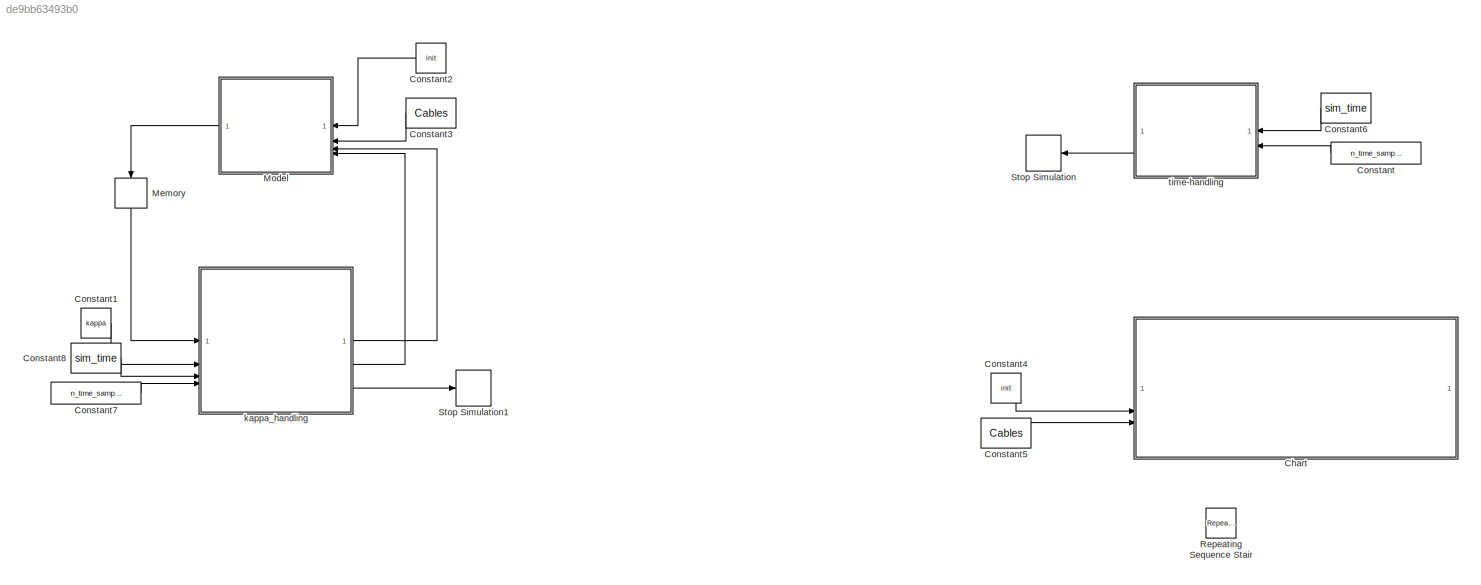
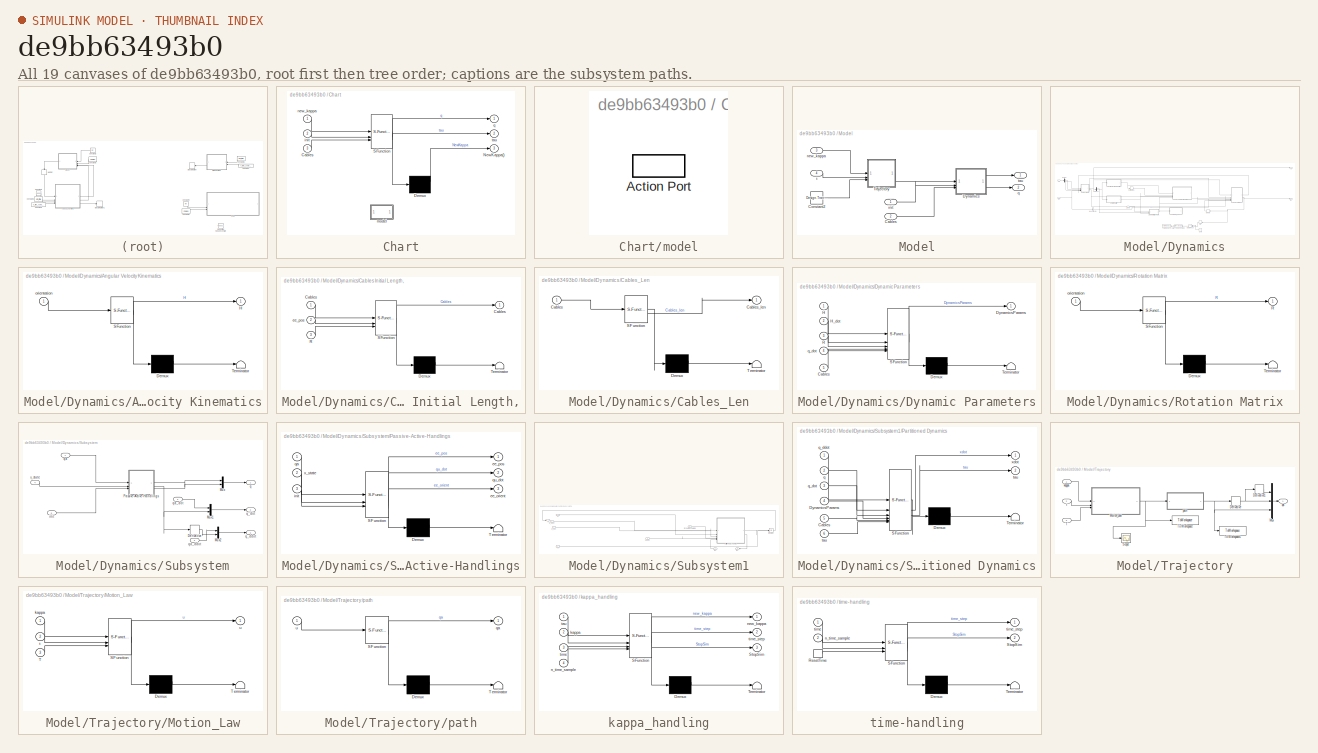
[diagram: thumbnail index - all 19 canvases of the model, root first then tree order]
MODEL slx_de9bb63493b0
KIND model
CONFIG AbsTol = auto
CONFIG EnableMultiTasking = off
CONFIG FixedStep = auto
CONFIG InitFcn = run("Ida_Dynamic.mlx")
CONFIG MaxStep = auto
CONFIG MinStep = auto
CONFIG RelTol = 1e-3
CONFIG SampleTimeConstraint = Unconstrained
CONFIG SolverName = VariableStepAuto
CONFIG StartTime = 0.0
CONFIG StopTime = inf
BLOCK [SubSystem] Chart
  Commented = on
  ErrorFcn = Stateflow.Translate.translate
  PermitHierarchicalResolution = ExplicitOnly
  PortSchema = {"entries":[{"content":{"sides":[{"content":{"connectorIds":["In1","In2","In3"]},"type":"ConnectorPlacement.EquallySpacedRectSide","uuid":"191c1550-6bd7-40a1-a407-faed922c01f5"},{"content":{"connectorIds":["Out1","Out2"],"side":"RIGHT"},"type":"ConnectorPlacement.EquallySpacedRectSide","uuid":"ea9eb825-e49b-447b-9f77-f893937989a1"},{"content":{"connectorIds":["Out3"],"side":"TOP"},"type":"Connecto...<+265ch>
  SFBlockType = Chart
  TreatAsAtomicUnit = on
BLOCK [Demux] Chart/ Demux 
  Outputs = 1
BLOCK [S-Function] Chart/ SFunction 
  EnableBusSupport = on
  FunctionName = sf_sfun
  PortCounts = [3 3]
  SFcnIsStateOwnerBlock = off
  SFunctionDeploymentMode = off
  Tag = Stateflow S-Function 10
BLOCK [Inport] Chart/Cables
  Port = 3
BLOCK [Outport] Chart/NewKappa()
  Port = 3
BLOCK [Inport] Chart/init
  Port = 2
BLOCK [SubSystem] Chart/model
  PreDeleteFcn = Stateflow.SLINSF.SimulinkMan.removePreDeleteFcn
  UndoDeleteFcn = Stateflow.SLINSF.SimulinkMan.restorePreDeleteFcn
BLOCK [ActionPort] Chart/model/Action Port
  CopyFcn = Stateflow.SLINSF.SimulinkMan.removeBlockPreDeleteFcn
  PreDeleteFcn = Stateflow.SLINSF.SimulinkMan.unsafePredeleteFcn
BLOCK [Inport] Chart/new_kappa
BLOCK [Outport] Chart/q
BLOCK [Outport] Chart/tau
  Port = 2
BLOCK [Constant] Constant
  Commented = on
  NameLocation = top
  Value = n_time_sample
BLOCK [Constant] Constant1
  Value = kappa
BLOCK [Constant] Constant2
  NameLocation = top
  OutDataTypeStr = Bus: slBus3
  Value = init
BLOCK [Constant] Constant3
  NameLocation = top
  OutDataTypeStr = Bus: slBus1
  Value = Cables
BLOCK [Constant] Constant4
  Commented = on
  OutDataTypeStr = Bus: slBus3
  Value = init
BLOCK [Constant] Constant5
  Commented = on
  OutDataTypeStr = Bus: slBus1
  Value = Cables
BLOCK [Constant] Constant6
  Commented = on
  NameLocation = top
  Value = sim_time
BLOCK [Constant] Constant7
  Value = n_time_sample
BLOCK [Constant] Constant8
  Value = sim_time
BLOCK [Memory] Memory
  NameLocation = left
BLOCK [SubSystem] Model
  NameLocation = top
BLOCK [Inport] Model/Cables
  Port = 2
BLOCK [Constant] Model/Constant2
  Value = Design.Transition_time
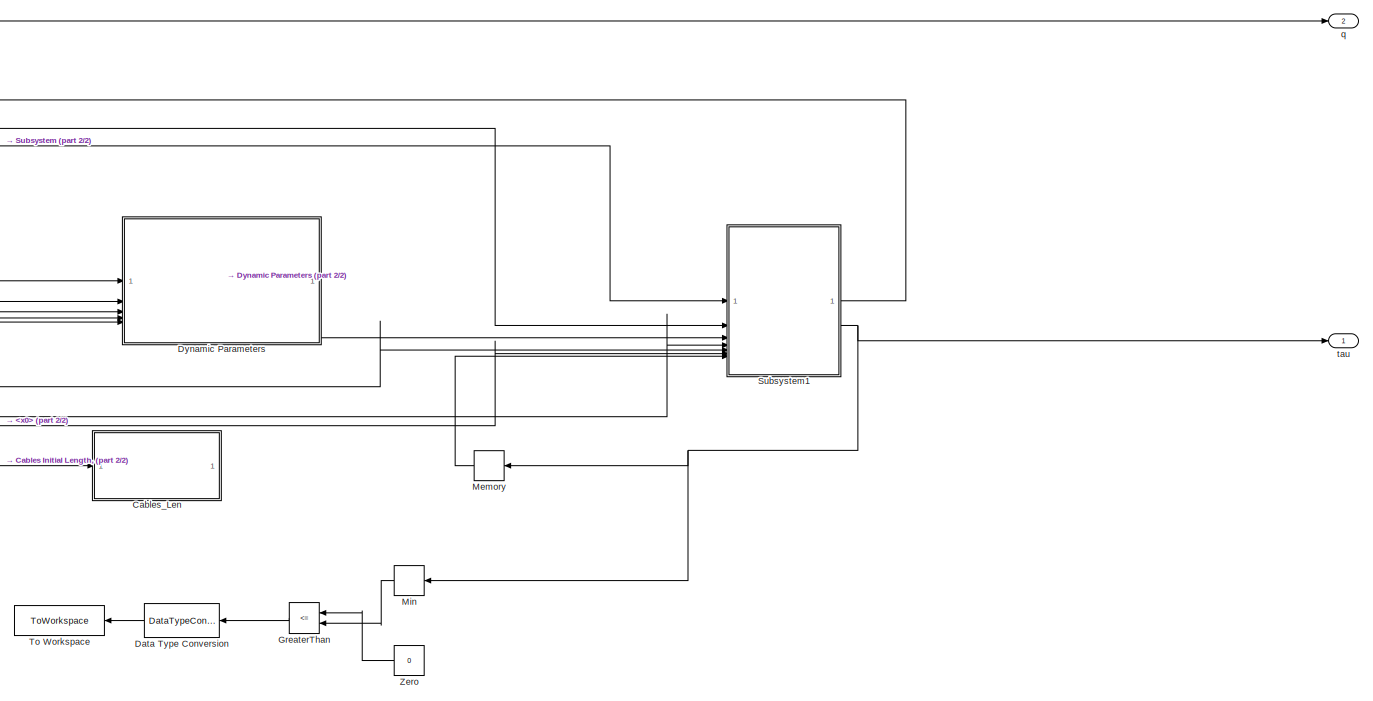
[diagram: Model/Dynamics - part 1/2, right side, full height]
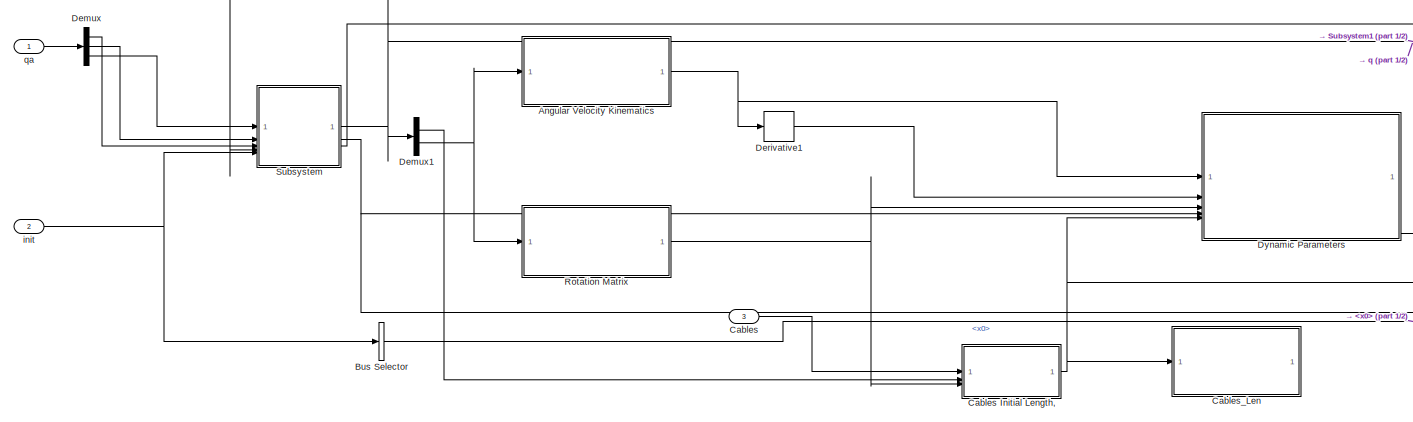
[diagram: Model/Dynamics - part 2/2, middle left region]
BLOCK [SubSystem] Model/Dynamics
BLOCK [SubSystem] Model/Dynamics/Angular Velocity Kinematics
  ErrorFcn = Stateflow.Translate.translate
  LibrarySourceBlock = simulink/User-Defined\nFunctions/MATLAB Function
  PermitHierarchicalResolution = ExplicitOnly
  SFBlockType = MATLAB Function
  TreatAsAtomicUnit = on
BLOCK [Demux] Model/Dynamics/Angular Velocity Kinematics/ Demux 
  Outputs = 1
BLOCK [S-Function] Model/Dynamics/Angular Velocity Kinematics/ SFunction 
  EnableBusSupport = on
  FunctionName = sf_sfun
  PortCounts = [1 2]
  SFcnIsStateOwnerBlock = off
  SFunctionDeploymentMode = off
  Tag = Stateflow S-Function 6
BLOCK [Terminator] Model/Dynamics/Angular Velocity Kinematics/ Terminator 
BLOCK [Outport] Model/Dynamics/Angular Velocity Kinematics/H
BLOCK [Inport] Model/Dynamics/Angular Velocity Kinematics/orientation
BLOCK [BusSelector] Model/Dynamics/Bus Selector
  OutputSignals = x0
BLOCK [Inport] Model/Dynamics/Cables
  OutDataTypeStr = Bus: slBus1
  Port = 3
BLOCK [SubSystem] Model/Dynamics/Cables Initial Length,
  ErrorFcn = Stateflow.Translate.translate
  LibrarySourceBlock = simulink/User-Defined\nFunctions/MATLAB Function
  PermitHierarchicalResolution = ExplicitOnly
  SFBlockType = MATLAB Function
  TreatAsAtomicUnit = on
BLOCK [Demux] Model/Dynamics/Cables Initial Length,/ Demux 
  Outputs = 1
BLOCK [S-Function] Model/Dynamics/Cables Initial Length,/ SFunction 
  EnableBusSupport = on
  FunctionName = sf_sfun
  Parameters = Design
  PortCounts = [3 2]
  SFcnIsStateOwnerBlock = off
  SFunctionDeploymentMode = off
  Tag = Stateflow S-Function 7
BLOCK [Terminator] Model/Dynamics/Cables Initial Length,/ Terminator 
BLOCK [Outport] Model/Dynamics/Cables Initial Length,/Cables
BLOCK [Inport] Model/Dynamics/Cables Initial Length,/Cables 
BLOCK [Inport] Model/Dynamics/Cables Initial Length,/R
  Port = 3
BLOCK [Inport] Model/Dynamics/Cables Initial Length,/ee_pos
  Port = 2
BLOCK [SubSystem] Model/Dynamics/Cables_Len
  ErrorFcn = Stateflow.Translate.translate
  LibrarySourceBlock = simulink/User-Defined\nFunctions/MATLAB Function
  PermitHierarchicalResolution = ExplicitOnly
  SFBlockType = MATLAB Function
  TreatAsAtomicUnit = on
BLOCK [Demux] Model/Dynamics/Cables_Len/ Demux 
  Outputs = 1
BLOCK [S-Function] Model/Dynamics/Cables_Len/ SFunction 
  EnableBusSupport = on
  FunctionName = sf_sfun
  PortCounts = [1 2]
  SFcnIsStateOwnerBlock = off
  SFunctionDeploymentMode = off
  Tag = Stateflow S-Function 9
BLOCK [Terminator] Model/Dynamics/Cables_Len/ Terminator 
BLOCK [Inport] Model/Dynamics/Cables_Len/Cables
BLOCK [Outport] Model/Dynamics/Cables_Len/Cables_len
BLOCK [DataTypeConversion] Model/Dynamics/Data Type Conversion
  NameLocation = top
  OutDataTypeStr = double
  RndMeth = Floor
  SaturateOnIntegerOverflow = off
BLOCK [Demux] Model/Dynamics/Demux
  Outputs = 3
BLOCK [Demux] Model/Dynamics/Demux1
  Outputs = 2
BLOCK [Derivative] Model/Dynamics/Derivative1
BLOCK [SubSystem] Model/Dynamics/Dynamic Parameters
  ErrorFcn = Stateflow.Translate.translate
  LibrarySourceBlock = simulink/User-Defined\nFunctions/MATLAB Function
  PermitHierarchicalResolution = ExplicitOnly
  SFBlockType = MATLAB Function
  TreatAsAtomicUnit = on
BLOCK [Demux] Model/Dynamics/Dynamic Parameters/ Demux 
  Outputs = 1
BLOCK [S-Function] Model/Dynamics/Dynamic Parameters/ SFunction 
  EnableBusSupport = on
  FunctionName = sf_sfun
  Parameters = Design
  PortCounts = [5 2]
  SFcnIsStateOwnerBlock = off
  SFunctionDeploymentMode = off
  Tag = Stateflow S-Function 4
BLOCK [Terminator] Model/Dynamics/Dynamic Parameters/ Terminator 
BLOCK [Inport] Model/Dynamics/Dynamic Parameters/Cables
  Port = 5
BLOCK [Outport] Model/Dynamics/Dynamic Parameters/DynamicsParams
BLOCK [Inport] Model/Dynamics/Dynamic Parameters/H
BLOCK [Inport] Model/Dynamics/Dynamic Parameters/H_dot
  Port = 2
BLOCK [Inport] Model/Dynamics/Dynamic Parameters/R
  Port = 3
BLOCK [Inport] Model/Dynamics/Dynamic Parameters/q_dot
  Port = 4
BLOCK [RelationalOperator] Model/Dynamics/GreaterThan
  InputSameDT = off
  NameLocation = top
  Operator = <=
  OutDataTypeStr = boolean
  RndMeth = Simplest
BLOCK [Memory] Model/Dynamics/Memory
BLOCK [MinMax] Model/Dynamics/Min
  NameLocation = top
BLOCK [SubSystem] Model/Dynamics/Rotation Matrix
  ErrorFcn = Stateflow.Translate.translate
  LibrarySourceBlock = simulink/User-Defined\nFunctions/MATLAB Function
  PermitHierarchicalResolution = ExplicitOnly
  SFBlockType = MATLAB Function
  TreatAsAtomicUnit = on
BLOCK [Demux] Model/Dynamics/Rotation Matrix/ Demux 
  Outputs = 1
BLOCK [S-Function] Model/Dynamics/Rotation Matrix/ SFunction 
  EnableBusSupport = on
  FunctionName = sf_sfun
  PortCounts = [1 2]
  SFcnIsStateOwnerBlock = off
  SFunctionDeploymentMode = off
  Tag = Stateflow S-Function 5
BLOCK [Terminator] Model/Dynamics/Rotation Matrix/ Terminator 
BLOCK [Outport] Model/Dynamics/Rotation Matrix/R
BLOCK [Inport] Model/Dynamics/Rotation Matrix/orientation
BLOCK [SubSystem] Model/Dynamics/Subsystem
BLOCK [Derivative] Model/Dynamics/Subsystem/Derivative
BLOCK [Mux] Model/Dynamics/Subsystem/Mux
  DisplayOption = bar
  Inputs = 2
BLOCK [Mux] Model/Dynamics/Subsystem/Mux1
  DisplayOption = bar
  Inputs = 2
BLOCK [Mux] Model/Dynamics/Subsystem/Mux2
  DisplayOption = bar
  Inputs = 2
BLOCK [SubSystem] Model/Dynamics/Subsystem/Passive-Active-Handlings
  ErrorFcn = Stateflow.Translate.translate
  PermitHierarchicalResolution = ExplicitOnly
  SFBlockType = Chart
  TreatAsAtomicUnit = on
BLOCK [Demux] Model/Dynamics/Subsystem/Passive-Active-Handlings/ Demux 
  Outputs = 1
BLOCK [S-Function] Model/Dynamics/Subsystem/Passive-Active-Handlings/ SFunction 
  EnableBusSupport = on
  FunctionName = sf_sfun
  Parameters = Design,Path
  PortCounts = [3 4]
  SFcnIsStateOwnerBlock = off
  SFunctionDeploymentMode = off
  Tag = Stateflow S-Function 8
BLOCK [Terminator] Model/Dynamics/Subsystem/Passive-Active-Handlings/ Terminator 
BLOCK [Outport] Model/Dynamics/Subsystem/Passive-Active-Handlings/ee_orient
  Port = 3
BLOCK [Outport] Model/Dynamics/Subsystem/Passive-Active-Handlings/ee_pos
BLOCK [Inport] Model/Dynamics/Subsystem/Passive-Active-Handlings/init
  Port = 3
BLOCK [Inport] Model/Dynamics/Subsystem/Passive-Active-Handlings/qa
BLOCK [Outport] Model/Dynamics/Subsystem/Passive-Active-Handlings/qu_dot
  Port = 2
BLOCK [Inport] Model/Dynamics/Subsystem/Passive-Active-Handlings/x_state
  Port = 2
BLOCK [Inport] Model/Dynamics/Subsystem/init
  Port = 5
BLOCK [Outport] Model/Dynamics/Subsystem/q
BLOCK [Outport] Model/Dynamics/Subsystem/q_ddot
  Port = 3
BLOCK [Outport] Model/Dynamics/Subsystem/q_dot
  Port = 2
BLOCK [Inport] Model/Dynamics/Subsystem/qa
BLOCK [Inport] Model/Dynamics/Subsystem/qa_ddot
  Port = 3
BLOCK [Inport] Model/Dynamics/Subsystem/qa_dot
  Port = 2
BLOCK [Inport] Model/Dynamics/Subsystem/x_state
  Port = 4
BLOCK [SubSystem] Model/Dynamics/Subsystem1
BLOCK [Inport] Model/Dynamics/Subsystem1/<x0>
  Port = 6
BLOCK [Inport] Model/Dynamics/Subsystem1/Cables
  Port = 5
BLOCK [Inport] Model/Dynamics/Subsystem1/DynamicsParams
  Port = 3
BLOCK [Integrator] Model/Dynamics/Subsystem1/Integrator
  InitialCondition = init.x0
  InitialConditionSource = external
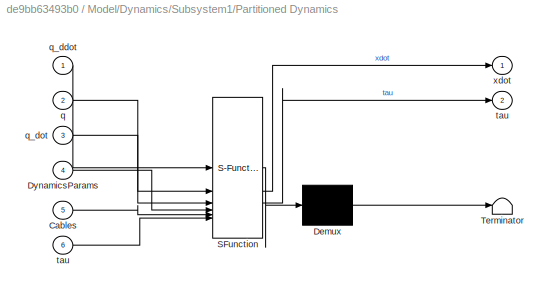
BLOCK [SubSystem] Model/Dynamics/Subsystem1/Partitioned Dynamics
  ErrorFcn = Stateflow.Translate.translate
  LibrarySourceBlock = simulink/User-Defined\nFunctions/MATLAB Function
  PermitHierarchicalResolution = ExplicitOnly
  SFBlockType = MATLAB Function
  TreatAsAtomicUnit = on
BLOCK [Demux] Model/Dynamics/Subsystem1/Partitioned Dynamics/ Demux 
  Outputs = 1
BLOCK [S-Function] Model/Dynamics/Subsystem1/Partitioned Dynamics/ SFunction 
  EnableBusSupport = on
  FunctionName = sf_sfun
  Parameters = Design
  PortCounts = [6 3]
  SFcnIsStateOwnerBlock = off
  SFunctionDeploymentMode = off
  Tag = Stateflow S-Function 3
BLOCK [Terminator] Model/Dynamics/Subsystem1/Partitioned Dynamics/ Terminator 
BLOCK [Inport] Model/Dynamics/Subsystem1/Partitioned Dynamics/Cables
  Port = 5
BLOCK [Inport] Model/Dynamics/Subsystem1/Partitioned Dynamics/DynamicsParams
  Port = 4
BLOCK [Inport] Model/Dynamics/Subsystem1/Partitioned Dynamics/q
  Port = 2
BLOCK [Inport] Model/Dynamics/Subsystem1/Partitioned Dynamics/q_ddot
BLOCK [Inport] Model/Dynamics/Subsystem1/Partitioned Dynamics/q_dot
  Port = 3
BLOCK [Outport] Model/Dynamics/Subsystem1/Partitioned Dynamics/tau
  Port = 2
BLOCK [Inport] Model/Dynamics/Subsystem1/Partitioned Dynamics/tau 
  Port = 6
BLOCK [Outport] Model/Dynamics/Subsystem1/Partitioned Dynamics/xdot
BLOCK [Inport] Model/Dynamics/Subsystem1/q
BLOCK [Inport] Model/Dynamics/Subsystem1/q_ddot
  Port = 2
BLOCK [Inport] Model/Dynamics/Subsystem1/q_dot
  Port = 4
BLOCK [Outport] Model/Dynamics/Subsystem1/tau
  Port = 2
BLOCK [Inport] Model/Dynamics/Subsystem1/tau 
  Port = 7
BLOCK [Outport] Model/Dynamics/Subsystem1/x
BLOCK [ToWorkspace] Model/Dynamics/To Workspace
  FixptAsFi = on
  MaxDataPoints = inf
  NameLocation = top
  SampleTime = -1
  SaveFormat = Timeseries
  VariableName = IsTensionPositive
BLOCK [Constant] Model/Dynamics/Zero
  NameLocation = top
  OutDataTypeStr = Inherit: Inherit via back propagation
  Value = 0
BLOCK [Inport] Model/Dynamics/init
  OutDataTypeStr = Bus: slBus3
  Port = 2
BLOCK [Outport] Model/Dynamics/q
  Port = 2
BLOCK [Inport] Model/Dynamics/qa
BLOCK [Outport] Model/Dynamics/tau
BLOCK [SubSystem] Model/Trajectory
BLOCK [Derivative] Model/Trajectory/Derivative
BLOCK [Derivative] Model/Trajectory/Derivative1
BLOCK [SubSystem] Model/Trajectory/Motion_Law
  ErrorFcn = Stateflow.Translate.translate
  LibrarySourceBlock = simulink/User-Defined\nFunctions/MATLAB Function
  PermitHierarchicalResolution = ExplicitOnly
  SFBlockType = MATLAB Function
  TreatAsAtomicUnit = on
BLOCK [Demux] Model/Trajectory/Motion_Law/ Demux 
  Outputs = 1
BLOCK [S-Function] Model/Trajectory/Motion_Law/ SFunction 
  EnableBusSupport = on
  FunctionName = sf_sfun
  Parameters = r
  PortCounts = [3 2]
  SFcnIsStateOwnerBlock = off
  SFunctionDeploymentMode = off
  Tag = Stateflow S-Function 2
BLOCK [Terminator] Model/Trajectory/Motion_Law/ Terminator 
BLOCK [Inport] Model/Trajectory/Motion_Law/T
  Port = 3
BLOCK [Inport] Model/Trajectory/Motion_Law/kappa
BLOCK [Inport] Model/Trajectory/Motion_Law/t
  Port = 2
BLOCK [Outport] Model/Trajectory/Motion_Law/u
BLOCK [Mux] Model/Trajectory/Mux
  DisplayOption = bar
  Inputs = 3
BLOCK [Scope] Model/Trajectory/Scope
  Floating = off
  NumInputPorts = 1
  ScopeSpecificationString = Simulink.scopes.TimeScopeBlockCfg('CurrentConfiguration', extmgr.ConfigurationSet(extmgr.Configuration('Core','General UI',true),extmgr.Configuration('Core','Source UI',true),extmgr.Configuration('Sources','WiredSimulink',true),extmgr.Configuration('Visuals','Time Domain',true,'SerializedDisplays',{struct('MinYLimReal','-5913892031518088672909082807500800.00000','MaxYLimReal','53225028283662811891...<+1913ch>
BLOCK [Inport] Model/Trajectory/T
  Port = 3
BLOCK [ToWorkspace] Model/Trajectory/To Workspace
  FixptAsFi = on
  MaxDataPoints = inf
  SampleTime = -1
  SaveFormat = Timeseries
  VariableName = MotionLaw
BLOCK [ToWorkspace] Model/Trajectory/To Workspace1
  FixptAsFi = on
  MaxDataPoints = inf
  SampleTime = -1
  SaveFormat = Timeseries
  VariableName = qa
BLOCK [Inport] Model/Trajectory/kappa
BLOCK [SubSystem] Model/Trajectory/path
  ErrorFcn = Stateflow.Translate.translate
  LibrarySourceBlock = simulink/User-Defined\nFunctions/MATLAB Function
  PermitHierarchicalResolution = ExplicitOnly
  SFBlockType = MATLAB Function
  TreatAsAtomicUnit = on
BLOCK [Demux] Model/Trajectory/path/ Demux 
  Outputs = 1
BLOCK [S-Function] Model/Trajectory/path/ SFunction 
  EnableBusSupport = on
  FunctionName = sf_sfun
  Parameters = Path
  PortCounts = [1 2]
  SFcnIsStateOwnerBlock = off
  SFunctionDeploymentMode = off
  Tag = Stateflow S-Function 1
BLOCK [Terminator] Model/Trajectory/path/ Terminator 
BLOCK [Outport] Model/Trajectory/path/qa
BLOCK [Inport] Model/Trajectory/path/u
BLOCK [Outport] Model/Trajectory/qa
BLOCK [Inport] Model/Trajectory/t
  Port = 2
BLOCK [Inport] Model/init
BLOCK [Inport] Model/new_kappa
  Port = 3
BLOCK [Outport] Model/q
  Port = 2
BLOCK [Inport] Model/t
  Port = 4
BLOCK [Outport] Model/tau
BLOCK [Reference] Repeating Sequence Stair  REF=simulink/Sources/Repeating
Sequence
Stair
  SourceBlock = simulink/Sources/Repeating\nSequence\nStair
  SourceType = Repeating Sequence Stair
BLOCK [Stop] Stop Simulation
  Commented = on
  NameLocation = top
BLOCK [Stop] Stop Simulation1
BLOCK [SubSystem] kappa_handling
  ErrorFcn = Stateflow.Translate.translate
  PermitHierarchicalResolution = ExplicitOnly
  SFBlockType = Chart
  TreatAsAtomicUnit = on
BLOCK [Demux] kappa_handling/ Demux 
  Outputs = 1
BLOCK [S-Function] kappa_handling/ SFunction 
  EnableBusSupport = on
  FunctionName = sf_sfun
  PortCounts = [4 4]
  SFcnIsStateOwnerBlock = off
  SFunctionDeploymentMode = off
  Tag = Stateflow S-Function 11
BLOCK [Terminator] kappa_handling/ Terminator 
BLOCK [Outport] kappa_handling/StopSim
  Port = 3
BLOCK [Inport] kappa_handling/kappa
  Port = 2
BLOCK [Inport] kappa_handling/n_time_sample
  Port = 4
BLOCK [Outport] kappa_handling/new_kappa
BLOCK [Inport] kappa_handling/tau
BLOCK [Inport] kappa_handling/time
  Port = 3
BLOCK [Outport] kappa_handling/time_step
  Port = 2
BLOCK [SubSystem] time-handling
  Commented = on
  ErrorFcn = Stateflow.Translate.translate
  NameLocation = top
  PermitHierarchicalResolution = ExplicitOnly
  SFBlockType = Chart
  TreatAsAtomicUnit = on
BLOCK [Demux] time-handling/ Demux 
  Outputs = 1
BLOCK [S-Function] time-handling/ SFunction 
  EnableBusSupport = on
  FunctionName = sf_sfun
  PortCounts = [3 3]
  SFcnIsStateOwnerBlock = off
  SFunctionDeploymentMode = off
  Tag = Stateflow S-Function 12
BLOCK [Terminator] time-handling/ Terminator 
BLOCK [TriggerPort] time-handling/ResetTime
  ShowOutputPort = on
  StatesWhenEnabling = reset
  TriggerType = function-call
  VariantControl = (inherit)
BLOCK [Outport] time-handling/StopSim
  Port = 2
BLOCK [Inport] time-handling/n_time_sample
  Port = 2
BLOCK [Inport] time-handling/time
BLOCK [Outport] time-handling/time_step
LINE Constant1:1 -> kappa_handling:2
LINE Constant2:1 -> Model:1
LINE Constant3:1 -> Model:2
LINE Constant4:1 -> Chart:2
LINE Constant5:1 -> Chart:3
LINE Constant6:1 -> time-handling:1
LINE Constant7:1 -> kappa_handling:4
LINE Constant8:1 -> kappa_handling:3
LINE Constant:1 -> time-handling:2
LINE Memory:1 -> kappa_handling:1
LINE Model/Cables:1 -> Model/Dynamics:3
LINE Model/Constant2:1 -> Model/Trajectory:3
NET Model/Dynamics/Angular Velocity Kinematics:1 -> Model/Dynamics/Derivative1:1, Model/Dynamics/Dynamic Parameters:1
LINE Model/Dynamics/Bus Selector:1 -> Model/Dynamics/Subsystem1:6
NET Model/Dynamics/Cables Initial Length,:1 -> Model/Dynamics/Cables_Len:1, Model/Dynamics/Dynamic Parameters:5, Model/Dynamics/Subsystem1:5
LINE Model/Dynamics/Cables:1 -> Model/Dynamics/Cables Initial Length,:1
LINE Model/Dynamics/Data Type Conversion:1 -> Model/Dynamics/To Workspace:1
LINE Model/Dynamics/Demux1:1 -> Model/Dynamics/Cables Initial Length,:2
NET Model/Dynamics/Demux1:2 -> Model/Dynamics/Angular Velocity Kinematics:1, Model/Dynamics/Rotation Matrix:1
LINE Model/Dynamics/Demux:1 -> Model/Dynamics/Subsystem:3
LINE Model/Dynamics/Demux:2 -> Model/Dynamics/Subsystem:2
LINE Model/Dynamics/Demux:3 -> Model/Dynamics/Subsystem:1
LINE Model/Dynamics/Derivative1:1 -> Model/Dynamics/Dynamic Parameters:2
LINE Model/Dynamics/Dynamic Parameters:1 -> Model/Dynamics/Subsystem1:3
LINE Model/Dynamics/GreaterThan:1 -> Model/Dynamics/Data Type Conversion:1
LINE Model/Dynamics/Memory:1 -> Model/Dynamics/Subsystem1:7
LINE Model/Dynamics/Min:1 -> Model/Dynamics/GreaterThan:2
NET Model/Dynamics/Rotation Matrix:1 -> Model/Dynamics/Cables Initial Length,:3, Model/Dynamics/Dynamic Parameters:3
LINE Model/Dynamics/Subsystem/Derivative:1 -> Model/Dynamics/Subsystem/Mux2:2
LINE Model/Dynamics/Subsystem/Mux1:1 -> Model/Dynamics/Subsystem/q_dot:1
LINE Model/Dynamics/Subsystem/Mux2:1 -> Model/Dynamics/Subsystem/q_ddot:1
LINE Model/Dynamics/Subsystem/Mux:1 -> Model/Dynamics/Subsystem/q:1
LINE Model/Dynamics/Subsystem/Passive-Active-Handlings:1 -> Model/Dynamics/Subsystem/Mux:1
NET Model/Dynamics/Subsystem/Passive-Active-Handlings:2 -> Model/Dynamics/Subsystem/Derivative:1, Model/Dynamics/Subsystem/Mux1:2
LINE Model/Dynamics/Subsystem/Passive-Active-Handlings:3 -> Model/Dynamics/Subsystem/Mux:2
LINE Model/Dynamics/Subsystem/init:1 -> Model/Dynamics/Subsystem/Passive-Active-Handlings:3
LINE Model/Dynamics/Subsystem/qa:1 -> Model/Dynamics/Subsystem/Passive-Active-Handlings:1
LINE Model/Dynamics/Subsystem/qa_ddot:1 -> Model/Dynamics/Subsystem/Mux2:1
LINE Model/Dynamics/Subsystem/qa_dot:1 -> Model/Dynamics/Subsystem/Mux1:1
LINE Model/Dynamics/Subsystem/x_state:1 -> Model/Dynamics/Subsystem/Passive-Active-Handlings:2
LINE Model/Dynamics/Subsystem1/<x0>:1 -> Model/Dynamics/Subsystem1/Integrator:2
LINE Model/Dynamics/Subsystem1/Cables:1 -> Model/Dynamics/Subsystem1/Partitioned Dynamics:5
LINE Model/Dynamics/Subsystem1/DynamicsParams:1 -> Model/Dynamics/Subsystem1/Partitioned Dynamics:4
LINE Model/Dynamics/Subsystem1/Integrator:1 -> Model/Dynamics/Subsystem1/x:1
LINE Model/Dynamics/Subsystem1/Partitioned Dynamics:1 -> Model/Dynamics/Subsystem1/Integrator:1
LINE Model/Dynamics/Subsystem1/Partitioned Dynamics:2 -> Model/Dynamics/Subsystem1/tau:1
LINE Model/Dynamics/Subsystem1/q:1 -> Model/Dynamics/Subsystem1/Partitioned Dynamics:2
LINE Model/Dynamics/Subsystem1/q_ddot:1 -> Model/Dynamics/Subsystem1/Partitioned Dynamics:1
LINE Model/Dynamics/Subsystem1/q_dot:1 -> Model/Dynamics/Subsystem1/Partitioned Dynamics:3
LINE Model/Dynamics/Subsystem1/tau :1 -> Model/Dynamics/Subsystem1/Partitioned Dynamics:6
LINE Model/Dynamics/Subsystem1:1 -> Model/Dynamics/Subsystem:4
NET Model/Dynamics/Subsystem1:2 -> Model/Dynamics/Memory:1, Model/Dynamics/Min:1, Model/Dynamics/tau:1
NET Model/Dynamics/Subsystem:1 -> Model/Dynamics/Demux1:1, Model/Dynamics/Subsystem1:1, Model/Dynamics/q:1
NET Model/Dynamics/Subsystem:2 -> Model/Dynamics/Dynamic Parameters:4, Model/Dynamics/Subsystem1:4
LINE Model/Dynamics/Subsystem:3 -> Model/Dynamics/Subsystem1:2
LINE Model/Dynamics/Zero:1 -> Model/Dynamics/GreaterThan:1
NET Model/Dynamics/init:1 -> Model/Dynamics/Bus Selector:1, Model/Dynamics/Subsystem:5
LINE Model/Dynamics/qa:1 -> Model/Dynamics/Demux:1
LINE Model/Dynamics:1 -> Model/tau:1
LINE Model/Dynamics:2 -> Model/q:1
LINE Model/Trajectory/Derivative1:1 -> Model/Trajectory/Mux:1
NET Model/Trajectory/Derivative:1 -> Model/Trajectory/Derivative1:1, Model/Trajectory/Mux:2
NET Model/Trajectory/Motion_Law:1 -> Model/Trajectory/Scope:1, Model/Trajectory/To Workspace:1, Model/Trajectory/path:1
LINE Model/Trajectory/Mux:1 -> Model/Trajectory/qa:1
LINE Model/Trajectory/T:1 -> Model/Trajectory/Motion_Law:3
LINE Model/Trajectory/kappa:1 -> Model/Trajectory/Motion_Law:1
NET Model/Trajectory/path:1 -> Model/Trajectory/Derivative:1, Model/Trajectory/Mux:3, Model/Trajectory/To Workspace1:1
LINE Model/Trajectory/t:1 -> Model/Trajectory/Motion_Law:2
LINE Model/Trajectory:1 -> Model/Dynamics:1
LINE Model/init:1 -> Model/Dynamics:2
LINE Model/new_kappa:1 -> Model/Trajectory:1
LINE Model/t:1 -> Model/Trajectory:2
LINE Model:1 -> Memory:1
LINE kappa_handling:1 -> Model:3
LINE kappa_handling:2 -> Model:4
LINE kappa_handling:3 -> Stop Simulation1:1
LINE time-handling:2 -> Stop Simulation:1
note: NET lines group one-source signal fan-out (src -> all destinations, sorted); 1:1 wires keep LINE
CHART Model/Dynamics/Rotation Matrix states=1 transitions=1
  STATE_LABEL 'eML_blk_kernel()'
  STATE_LABEL 'SCRIPT:\nfunction R = fcn(orientation)\nphi=orientation(1);\ntheta=orientation(2);\nchi=orientation(3);\n\nR = [\n    cos(theta)*cos(chi),              -cos(theta)*sin(chi),               sin(theta);\n    sin(phi)*sin(theta)*cos(chi) + cos(phi)*sin(chi),   -sin(phi)*sin(theta)*sin(chi) + cos(phi)*cos(chi),   -sin(phi)*cos(theta);\n    -cos(phi)*sin(theta)*cos(chi) + sin(phi)*sin(chi),  cos(phi)*sin(theta)*...<+56ch>'
CHART Model/Dynamics/Angular Velocity Kinematics states=1 transitions=1
  STATE_LABEL 'eML_blk_kernel()'
  STATE_LABEL 'SCRIPT:\nfunction H = fcn(orientation)\nphi=orientation(1);\ntheta=orientation(2);\nchi=orientation(3);\n\nH =[1 0 sin(theta); 0 cos(phi) -sin(phi)*cos(theta); 0 sin(phi) cos(phi)*cos(theta)];\n\n'
CHART Model/Dynamics/Cables Initial Length, states=1 transitions=1
  STATE_LABEL 'eML_blk_kernel()'
  STATE_LABEL "SCRIPT:\nfunction Cables = fcn(Cables,ee_pos, R,Design)\n\nfor i=1:Design.Cables_num\n    ai=Design.a(:,i);\n    di=Design.d(:,i);\n    vec = di - ee_pos' - R *ai ;\n    Cables(i).Vector=vec';\nend\n \n"
CHART Model/Dynamics/Subsystem/Passive-Active-Handlings states=2 transitions=5
  STATE_LABEL 'SoleTransition\nentry,during:\n%q_a(:,i)=qa;\n%q_u(:,i)=qu;\nee_orient=q_u(1:3);\nee_pos=qa;\ni=i+1;'
  STATE_LABEL "Store\nentry,during:\n%q_a(:,i)=qa;\n%q_u(:,i)=qu;\nqu=x_state(1:3);\nqu_dot=x_state(4:6);\nee_orient=qu';\nee_pos=qa;\n%i=i+1;\n"
CHART Model/Dynamics/Cables_Len states=1 transitions=1
  STATE_LABEL 'eML_blk_kernel()'
  STATE_LABEL 'SCRIPT:\nfunction Cables_len = Cables_Len(Cables)\nCables_len=zeros(numel(Cables),1);\nfor i=1:numel(Cables)\n    Cables_len(i)=norm(Cables(i).Vector);\nend\n\n'
CHART Chart states=1 transitions=3
  STATE_LABEL 'model'
CHART kappa_handling states=3 transitions=4
  STATE_LABEL 'Positive_Tension_Mode'
  STATE_LABEL 'select_time_sample\ndu,en:\ntime_step=time(index);\nindex=index+1;\n'
  STATE_LABEL 'Stop_simulation\nentry:\nsend(StopSim);\n'
  STATE_LABEL '[index==n_time_sample]'
  STATE_LABEL 'select_time_sample\ndu,en:\ntime_step=time(index);\nindex=index+1;\n'
  STATE_LABEL 'Stop_simulation\nentry:\nsend(StopSim);\n'
CHART time-handling states=2 transitions=3
  STATE_LABEL 'select_time_sample\nen,du:\ntime_step=time(index);\nindex=index+1;\n'
  STATE_LABEL 'Stop_simulation\nentry:\nsend(StopSim);\n'
CHART Model/Trajectory/path states=1 transitions=1
  STATE_LABEL 'eML_blk_kernel()'
  STATE_LABEL 'SCRIPT:\nfunction qa = Path(u,Path)\n\nspec=char(Path.spec);\nif isequal(spec, \'Line\'+0)\n    qa=Path.qa0+(Path.qaT-Path.qa0)*u;\nelse\n    error("specify correct Path.spec")\n\nend\nend\n\n'
CHART Model/Trajectory/Motion_Law states=1 transitions=1
  STATE_LABEL 'eML_blk_kernel()'
  STATE_LABEL "SCRIPT:\nfunction u = motion_law(kappa, t, T, r)\n    \n    kappa=kappa';\n    \n    % Define the degree of the transition polynomial\n   \n\n    % Define the coefficients ai using equation (45)\n    ai = zeros(1,r+1);\n    for i = r+1:2*r+1\n        ai(i-r) = (-1)^(i-r-1) * factorial(2*r+1) /((i * factorial(r) * factorial(i-r-1) * factorial(2*r+1-i))) ;\n    end\n\n    % Define alpha using equation (53)\n    al...<+254ch>"
CHART Model/Dynamics/Subsystem1/Partitioned Dynamics states=1 transitions=1
  STATE_LABEL 'eML_blk_kernel()'
  STATE_LABEL 'SCRIPT:\nfunction [xdot,tau] = fcn(q_ddot, q,q_dot, DynamicsParams,Cables,Design, tau)\n\n%%%%%%%%%%%%%%%%%%%%%%%%%%%%%%%%%%%%% Parametrs Initialization %%%%%%%%%%%%%%%%%%\nM=DynamicsParams.M;\nC=DynamicsParams.C;\nG=DynamicsParams.G;\nJ=DynamicsParams.J;\nFw=DynamicsParams.Fw;\n\n\n% Maa=M(1:3,1:3);\n% Mau=M(1:3,4:6);\n% Mua=M(4:6,1:3);\n% Muu=M(4:6,4:6);\n%\n% Caa=C(1:3,1:3);\n% Cau=C(1:3,4:6);\n% Cua=C(4:6,1:3);...<+1944ch>'
CHART Model/Dynamics/Dynamic Parameters states=1 transitions=1
  STATE_LABEL 'eML_blk_kernel()'
  STATE_LABEL "SCRIPT:\nfunction DynamicsParams = fcn(H,H_dot,R,q_dot,Cables,Design)\n\n\n\n%%%%%%%%%%%%%%%%%%%%%%%%%%%%%%%%%%% Parametrs Initialization %%%%%%%%%%%%%%%%%%\ng=Design.g;\nIc=Design.Ic;\nIc=R*Ic*R';\nr_p=Design.rho_p;\nr_g=R*r_p;\nrho_g=[0 -r_g(3) r_g(2); r_g(3) 0 -r_g(1); -r_g(2) r_g(1) 0];\nm=Design.m;\nomega=q_dot(4:6);\nOmega=[0 -omega(3) omega(2); omega(3) 0 -omega(1); -omega(2) omega(1) 0];\n\n\nCables_num=De...<+1746ch>"
CHART  states=0 transitions=0
CHART  states=0 transitions=0
CHART  states=0 transitions=0
CHART  states=0 transitions=0
CHART  states=0 transitions=0
CHART  states=0 transitions=0
CHART  states=0 transitions=0
CHART  states=0 transitions=0
CHART  states=0 transitions=0
CHART  states=0 transitions=0
CHART  states=0 transitions=0
CHART  states=0 transitions=0
